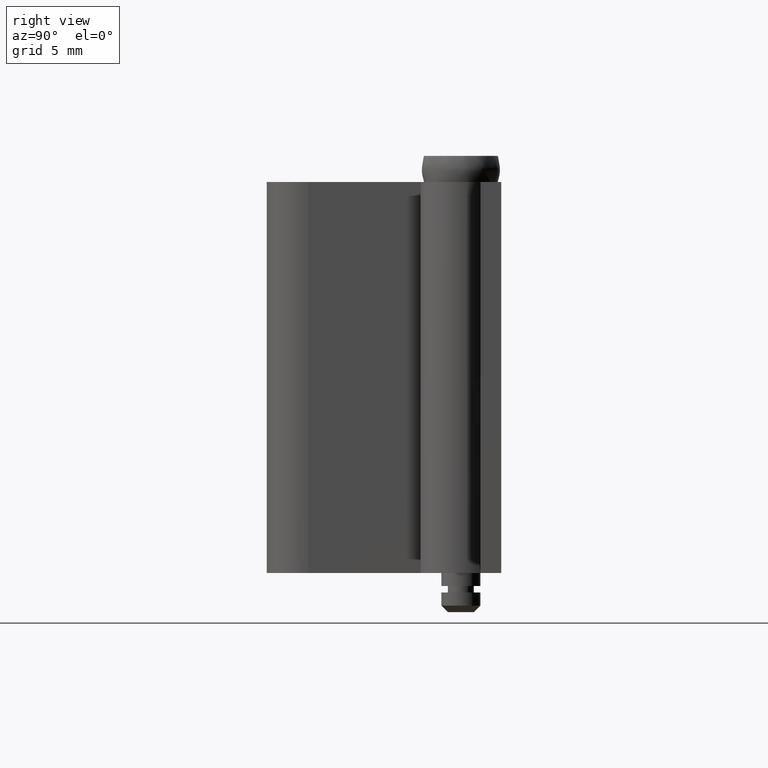
[diagram: clean part render]
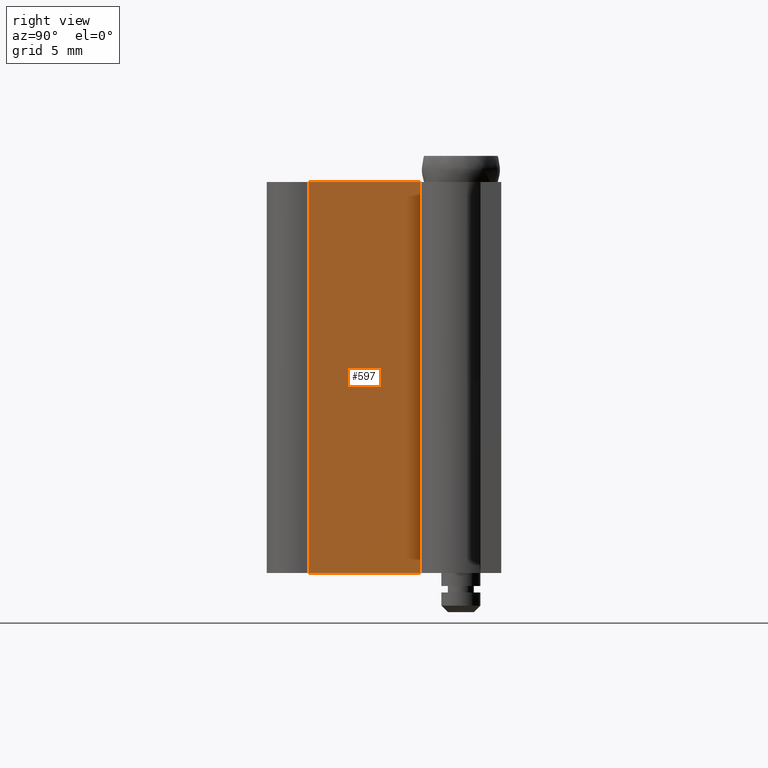
[diagram: same view with one face highlighted and labeled with its STEP entity id]
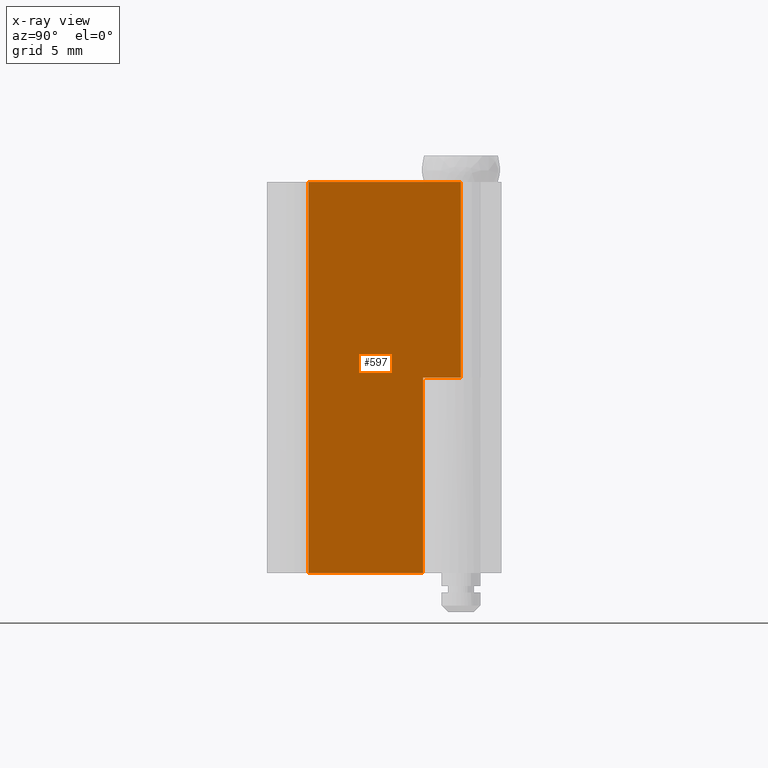
[diagram: x-ray of the same camera — body ghosted, the highlighted face saturated]
A machine part, right view. The second image highlights one B-rep face of the part: STEP entity #597.
The next image is the same camera in x-ray: the body ghosted, the highlighted face saturated — about 0% of this face is hidden behind the body in this view.
In plain terms, the highlighted face is a freeform B-spline surface patch.
Its self-contained STEP definition (entity closure, byte-faithful):
#49=CARTESIAN_POINT('',(-1.500000000000000,0.0,18.0));
#50=VERTEX_POINT('',#49);
#72=CARTESIAN_POINT('',(-1.500000000000000,-2.900002000000000,18.0));
#73=VERTEX_POINT('',#72);
#74=CARTESIAN_POINT('',(-1.500000000000000,-2.900002000000000,18.0));
#75=CARTESIAN_POINT('',(-1.500000000000000,0.0,18.0));
#76=QUASI_UNIFORM_CURVE('',1,(#74,#75),.UNSPECIFIED.,.F.,.U.);
#77=EDGE_CURVE('',#73,#50,#76,.T.);
#136=CARTESIAN_POINT('',(-1.500000000000000,-2.900002000000000,3.0));
#137=VERTEX_POINT('',#136);
#149=CARTESIAN_POINT('',(-1.500000000000000,-2.900002000000000,18.0));
#150=CARTESIAN_POINT('',(-1.500000000000000,-2.900002000000000,3.0));
#151=QUASI_UNIFORM_CURVE('',1,(#149,#150),.UNSPECIFIED.,.F.,.U.);
#152=EDGE_CURVE('',#73,#137,#151,.T.);
#163=CARTESIAN_POINT('',(-1.500000000000000,-11.704382779425741,3.0));
#164=VERTEX_POINT('',#163);
#165=CARTESIAN_POINT('',(-1.500000000000000,-11.704382779425741,3.0));
#166=CARTESIAN_POINT('',(-1.500000000000000,-2.900002000000000,3.0));
#167=QUASI_UNIFORM_CURVE('',1,(#165,#166),.UNSPECIFIED.,.F.,.U.);
#168=EDGE_CURVE('',#164,#137,#167,.T.);
#351=CARTESIAN_POINT('',(-1.500000000000000,-11.704382779425741,33.000008000000037));
#352=VERTEX_POINT('',#351);
#368=CARTESIAN_POINT('',(-1.500000000000000,0.0,33.000008000000037));
#369=VERTEX_POINT('',#368);
#370=CARTESIAN_POINT('',(-1.500000000000000,-11.704382779425741,33.000008000000037));
#371=CARTESIAN_POINT('',(-1.500000000000000,0.0,33.000008000000037));
#372=QUASI_UNIFORM_CURVE('',1,(#370,#371),.UNSPECIFIED.,.F.,.U.);
#373=EDGE_CURVE('',#352,#369,#372,.T.);
#576=CARTESIAN_POINT('',(-1.500000000000000,0.584633897146951,1.501499765726937));
#577=CARTESIAN_POINT('',(-1.500000000000000,0.584633897146951,34.498506893168248));
#578=CARTESIAN_POINT('',(-1.500000000000000,-12.289016990508699,1.501499765726937));
#579=CARTESIAN_POINT('',(-1.500000000000000,-12.289016990508699,34.498506893168248));
#580=B_SPLINE_SURFACE_WITH_KNOTS('',1,1,((#576,#578),(#577,#579)),.UNSPECIFIED.,.F.,.F.,.U.,(2,2),(2,2),(0.0,32.997007127441307),(0.0,12.873650887655650),.UNSPECIFIED.);
#581=ORIENTED_EDGE('',*,*,#152,.F.);
#582=ORIENTED_EDGE('',*,*,#77,.T.);
#583=CARTESIAN_POINT('',(-1.500000000000000,0.0,33.000008000000037));
#584=CARTESIAN_POINT('',(-1.500000000000000,0.0,18.0));
#585=QUASI_UNIFORM_CURVE('',1,(#583,#584),.UNSPECIFIED.,.F.,.U.);
#586=EDGE_CURVE('',#369,#50,#585,.T.);
#587=ORIENTED_EDGE('',*,*,#586,.F.);
#588=ORIENTED_EDGE('',*,*,#373,.F.);
#589=CARTESIAN_POINT('',(-1.500000000000000,-11.704382779425741,33.000008000000037));
#590=CARTESIAN_POINT('',(-1.500000000000000,-11.704382779425741,3.0));
#591=QUASI_UNIFORM_CURVE('',1,(#589,#590),.UNSPECIFIED.,.F.,.U.);
#592=EDGE_CURVE('',#352,#164,#591,.T.);
#593=ORIENTED_EDGE('',*,*,#592,.T.);
#594=ORIENTED_EDGE('',*,*,#168,.T.);
#595=EDGE_LOOP('',(#581,#582,#587,#588,#593,#594));
#596=FACE_OUTER_BOUND('',#595,.T.);
#597=ADVANCED_FACE('',(#596),#580,.T.);